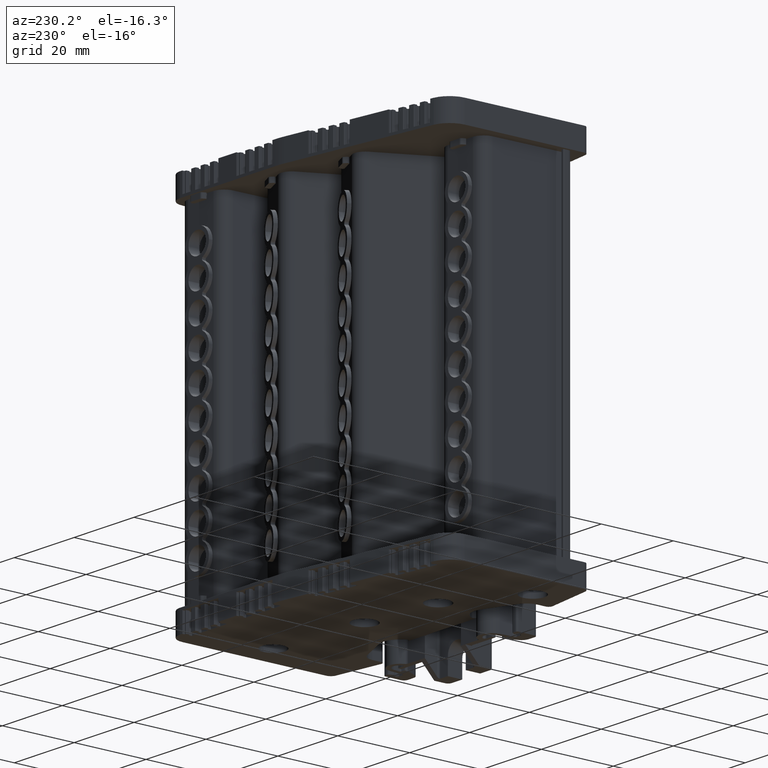
[diagram: clean part render]
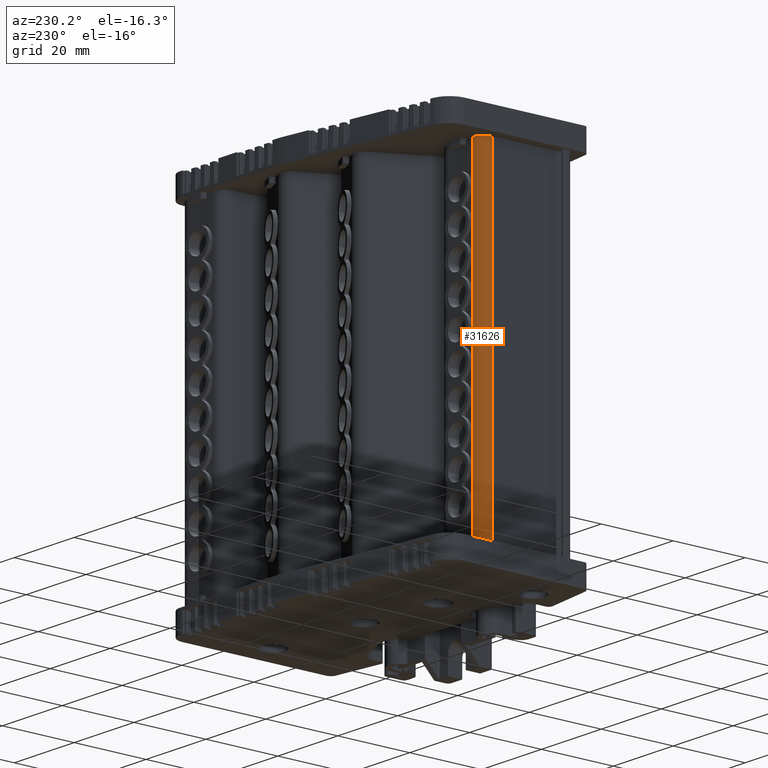
[diagram: same view with one face highlighted and labeled with its STEP entity id]
A machine part, auxiliary view. The second image highlights one B-rep face of the part: STEP entity #31626.
In plain terms, the highlighted cylindrical surface (edge-blend (fillet) strip) has radius 2.9989 mm, axis along (-0, -0, -1).
Its self-contained STEP definition (entity closure, byte-faithful):
#13952 = VECTOR ( 'NONE', #20961, 1000.000000000000000 ) ;
#13970 = VECTOR ( 'NONE', #21022, 1000.000000000000000 ) ;
#14411 = EDGE_CURVE ( 'NONE', #84107, #84043, #20980, .T. ) ;
#14465 = EDGE_CURVE ( 'NONE', #84073, #83956, #21000, .T. ) ;
#17657 = EDGE_CURVE ( 'NONE', #83956, #84043, #88196, .T. ) ;
#17759 = EDGE_CURVE ( 'NONE', #84073, #84107, #108087, .T. ) ;
#20960 = CARTESIAN_POINT ( 'NONE',  ( 356.2286242384466300, -87.76713268917218600, 5.376358000100584200 ) ) ;
#20961 = DIRECTION ( 'NONE',  ( 3.229646657840476000E-028, 1.604252062635188400E-014, 1.000000000000000000 ) ) ;
#20980 = LINE ( 'NONE', #20960, #13952 ) ;
#21000 = LINE ( 'NONE', #21003, #13970 ) ;
#21003 = CARTESIAN_POINT ( 'NONE',  ( 353.2302173437963700, -90.71365893825309000, 17.27185042424247300 ) ) ;
#21022 = DIRECTION ( 'NONE',  ( 5.073604798762439900E-013, 1.604252062634170100E-014, 1.000000000000000000 ) ) ;
#31626 = ADVANCED_FACE ( 'NONE', ( #41435 ), #41454, .T. ) ;
#37522 = AXIS2_PLACEMENT_3D ( 'NONE', #41444, #41442, #41487 ) ;
#41435 = FACE_OUTER_BOUND ( 'NONE', #90279, .T. ) ;
#41442 = DIRECTION ( 'NONE',  ( -5.073604798762439900E-013, -1.604252062634170100E-014, -1.000000000000000000 ) ) ;
#41444 = CARTESIAN_POINT ( 'NONE',  ( 356.2286242384532200, -90.76599632528790100, 17.27185042424095200 ) ) ;
#41454 = CYLINDRICAL_SURFACE ( 'NONE', #37522, 2.998863636114013100 ) ;
#41487 = DIRECTION ( 'NONE',  ( -1.000000000000000000, 0.0000000000000000000, 5.078881192081422400E-013 ) ) ;
#83956 = VERTEX_POINT ( 'NONE', #108059 ) ;
#84043 = VERTEX_POINT ( 'NONE', #108127 ) ;
#84073 = VERTEX_POINT ( 'NONE', #105961 ) ;
#84107 = VERTEX_POINT ( 'NONE', #105871 ) ;
#86262 = ORIENTED_EDGE ( 'NONE', *, *, #14411, .F. ) ;
#86280 = ORIENTED_EDGE ( 'NONE', *, *, #17657, .T. ) ;
#88196 = CIRCLE ( 'NONE', #88221, 2.998863636114013100 ) ;
#88221 = AXIS2_PLACEMENT_3D ( 'NONE', #103596, #103621, #103585 ) ;
#90279 = EDGE_LOOP ( 'NONE', ( #86262, #101786, #101778, #86280 ) ) ;
#101778 = ORIENTED_EDGE ( 'NONE', *, *, #14465, .T. ) ;
#101786 = ORIENTED_EDGE ( 'NONE', *, *, #17759, .F. ) ;
#103585 = DIRECTION ( 'NONE',  ( -1.000000000000000000, 0.0000000000000000000, 5.090450397530354100E-013 ) ) ;
#103596 = CARTESIAN_POINT ( 'NONE',  ( 356.2286242384933000, -90.76599632528665000, 96.29224815084049300 ) ) ;
#103621 = DIRECTION ( 'NONE',  ( -5.073604798762439900E-013, -1.604252062634170100E-014, -1.000000000000000000 ) ) ;
#103909 = DIRECTION ( 'NONE',  ( -5.073604798762439900E-013, -1.604252062634170100E-014, -1.000000000000000000 ) ) ;
#103928 = CARTESIAN_POINT ( 'NONE',  ( 356.2286242384470300, -90.76599632528808600, 5.094608000012150300 ) ) ;
#103945 = DIRECTION ( 'NONE',  ( -1.000000000000000000, 0.0000000000000000000, 5.073096589356956000E-013 ) ) ;
#105871 = CARTESIAN_POINT ( 'NONE',  ( 356.2286242384468000, -87.76713268917232800, 5.094608000012102300 ) ) ;
#105961 = CARTESIAN_POINT ( 'NONE',  ( 353.2302173437901200, -90.71365893825164100, 5.094608000012885700 ) ) ;
#108059 = CARTESIAN_POINT ( 'NONE',  ( 353.2302173438366100, -90.71365893825020500, 96.29224815084201300 ) ) ;
#108074 = AXIS2_PLACEMENT_3D ( 'NONE', #103928, #103909, #103945 ) ;
#108087 = CIRCLE ( 'NONE', #108074, 2.998863636114013100 ) ;
#108127 = CARTESIAN_POINT ( 'NONE',  ( 356.2286242384699900, -87.76713268917072200, 96.29224815084045000 ) ) ;